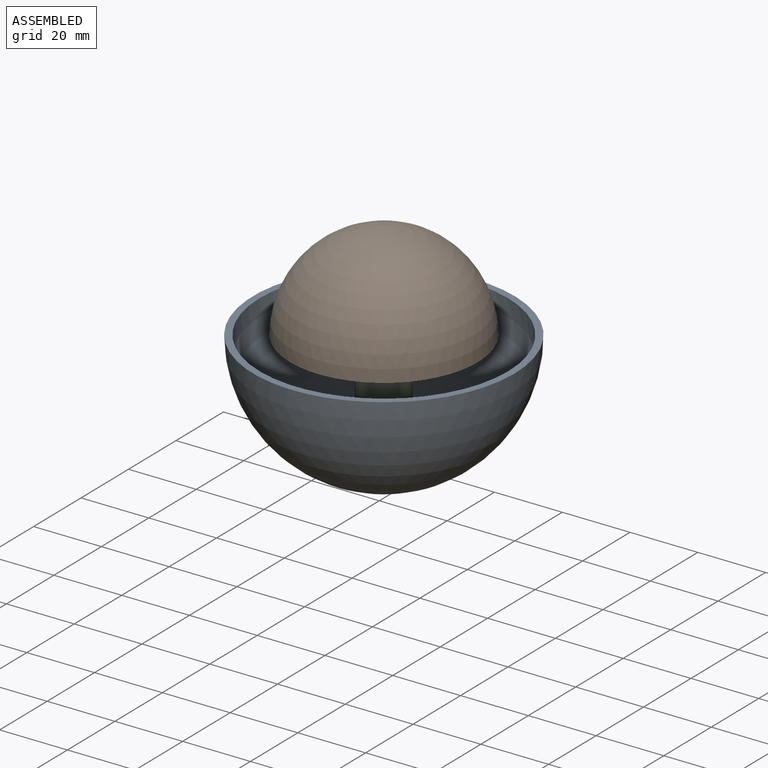
[diagram: assembled view]
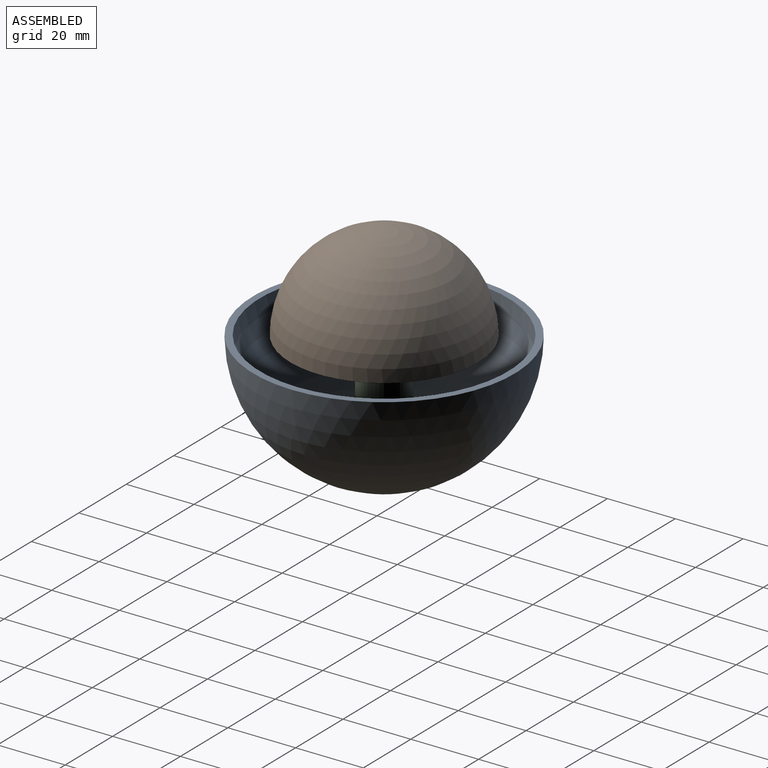
[diagram: assembled view, second angle]
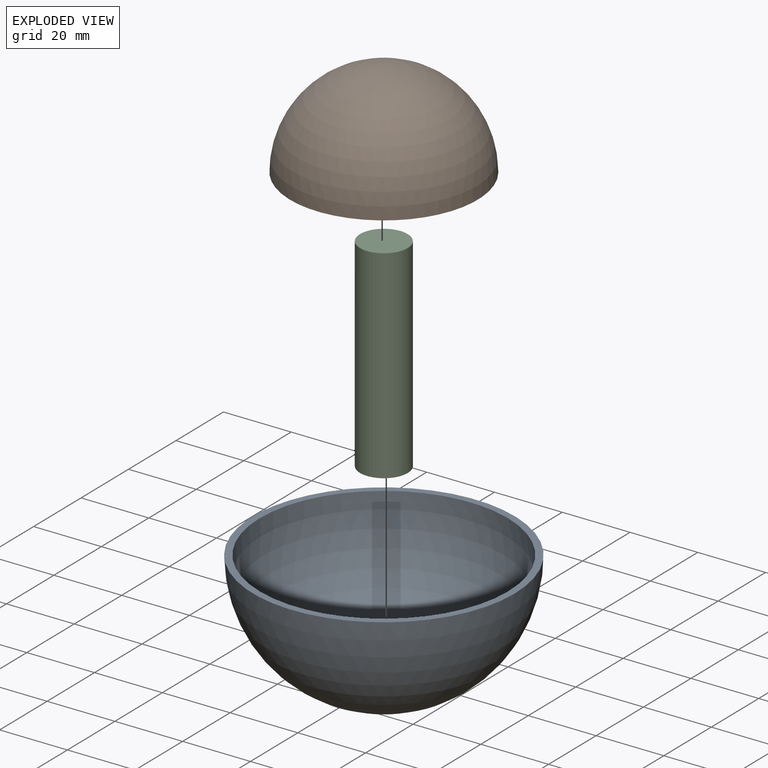
[diagram: exploded view]
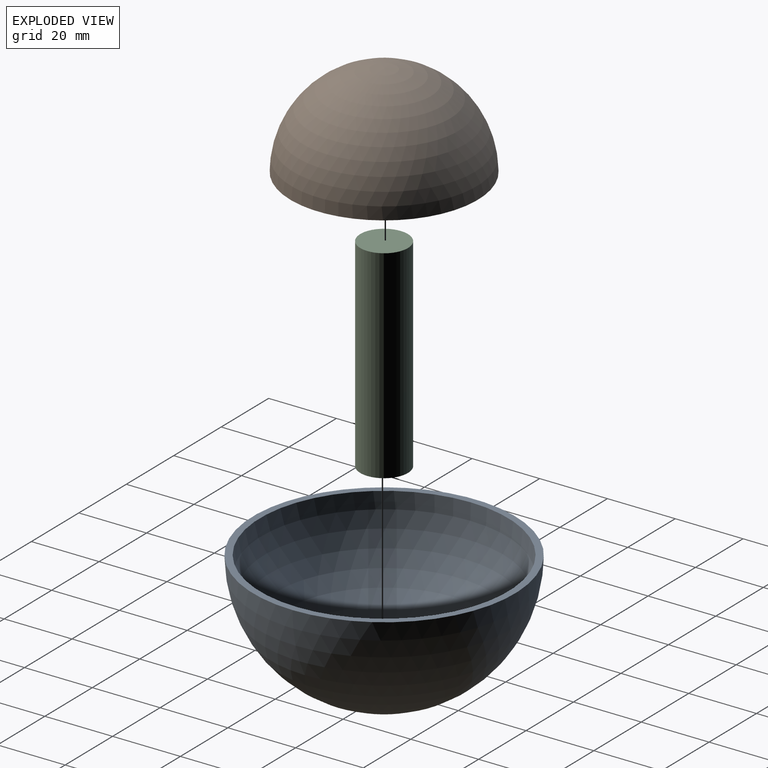
[diagram: exploded view, second angle]
ASSEMBLY  parts=3 mates=2
PART A: 3 faces, bbox 77.2x77.2x38.6 mm
  f0: sphere r=38.62mm, area 9371.6mm2, adj f1
  f1: plane 77.24x77.24mm, normal (0,0,1), area 472.8mm2, adj f0,f2
  f2: sphere r=36.62mm, area 8426.1mm2, adj f1
PART B: 3 faces, bbox 55.4x55.4x27.7 mm
  f0: plane 55.36x55.36mm, normal (0,0,-1), area 170.8mm2, adj f1,f2
  f1: sphere r=27.68mm, area 4814.1mm2, adj f0
  f2: sphere r=26.68mm, area 4472.5mm2, adj f0
PART C: 3 faces, bbox 14.1x14.1x60 mm
  f0: cylinder r=7.03mm len=60mm, axis (0,0,-1), area 2648.6mm2, adj f1,f2
  f1: plane 14.05x14.05mm, normal (0,0,1), area 155.1mm2, adj f0
  f2: plane 14.05x14.05mm, normal (0,0,-1), area 155.1mm2, adj f0
PLACE A t=(8.52,-15.91,-11.94)mm fixed
PLACE B t=(8.52,-15.91,-11.94)mm
PLACE C t=(8.52,-15.91,-46.94)mm
MATE revolute C.f0 <-> B.f2  axis (0,0,1) through (8.52,-15.91,13.06)mm
MATE revolute C.f0 <-> A.f2  axis (0,0,-1) through (8.52,-15.91,-46.94)mm
